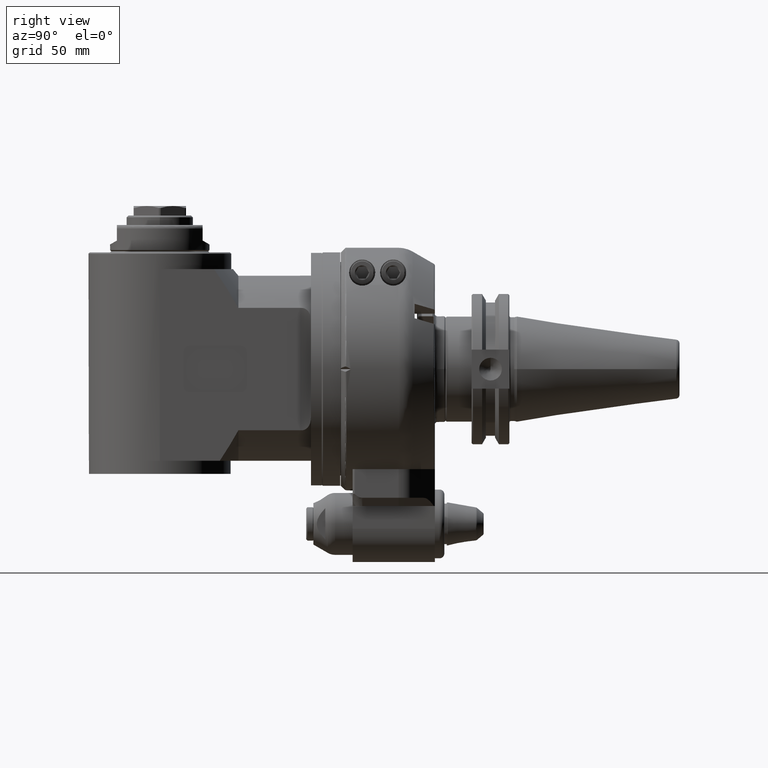
[diagram: clean part render]
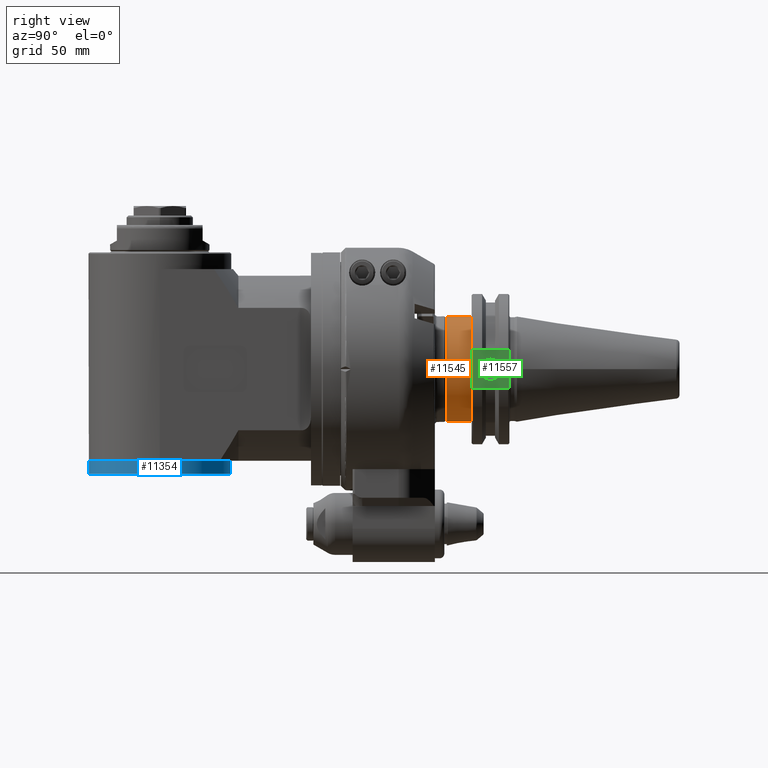
[diagram: same view with three faces highlighted in distinct colors, each labeled with its STEP entity id]
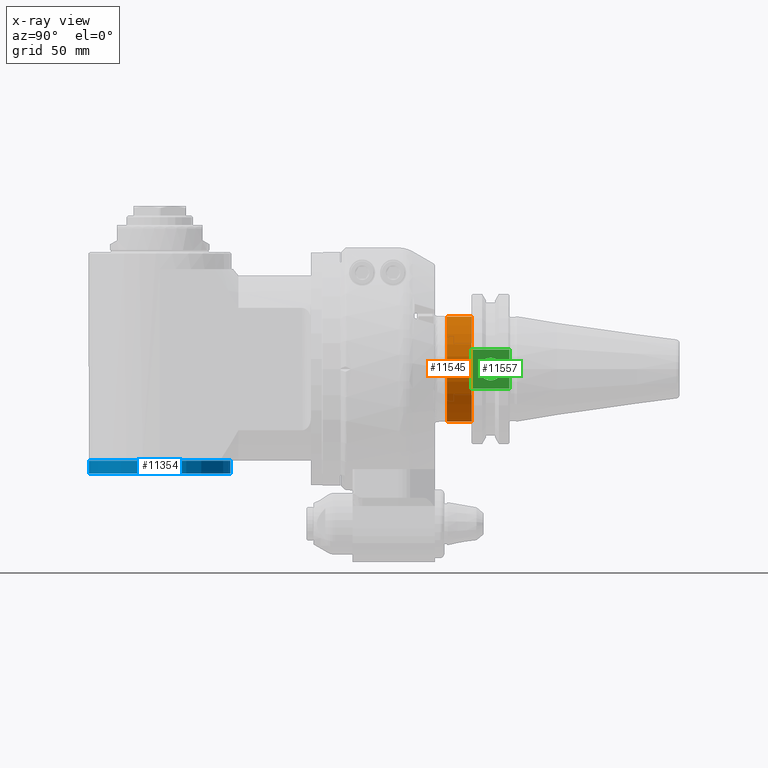
[diagram: x-ray of the same camera — body ghosted, the three highlighted faces saturated]
A machine part, right view with three faces highlighted in distinct colors.
The next image is the same camera in x-ray (body ghosted, the three faces saturated) — at least one of them is partly hidden behind the body in this view.
Their STEP definitions:

[orange] entity #11545 — the highlighted cylindrical surface (bore or boss wall) has radius 22.225 mm, axis along (0, -1, 0).
#1200=FACE_OUTER_BOUND('',#1965,.T.);
#1965=EDGE_LOOP('',(#8730,#8731,#8732,#8733,#8734));
#2801=LINE('',#18792,#3576);
#3576=VECTOR('',#14710,22.225);
#4333=CIRCLE('',#12578,22.225);
#4334=CIRCLE('',#12579,22.225);
#4335=CIRCLE('',#12581,22.225);
#5184=VERTEX_POINT('',#18785);
#5185=VERTEX_POINT('',#18786);
#5186=VERTEX_POINT('',#18791);
#6493=EDGE_CURVE('',#5184,#5185,#4333,.T.);
#6495=EDGE_CURVE('',#5185,#5184,#4334,.T.);
#6496=EDGE_CURVE('',#5184,#5186,#2801,.T.);
#6497=EDGE_CURVE('',#5186,#5186,#4335,.T.);
#8730=ORIENTED_EDGE('',*,*,#6493,.F.);
#8731=ORIENTED_EDGE('',*,*,#6496,.T.);
#8732=ORIENTED_EDGE('',*,*,#6497,.F.);
#8733=ORIENTED_EDGE('',*,*,#6496,.F.);
#8734=ORIENTED_EDGE('',*,*,#6495,.F.);
#11191=CYLINDRICAL_SURFACE('',#12580,22.225);
#11545=ADVANCED_FACE('',(#1200),#11191,.T.);
#12578=AXIS2_PLACEMENT_3D('',#18787,#14703,#14704);
#12579=AXIS2_PLACEMENT_3D('',#18789,#14706,#14707);
#12580=AXIS2_PLACEMENT_3D('',#18790,#14708,#14709);
#12581=AXIS2_PLACEMENT_3D('',#18793,#14711,#14712);
#14703=DIRECTION('center_axis',(0.,-1.,0.));
#14704=DIRECTION('ref_axis',(-1.,0.,0.));
#14706=DIRECTION('center_axis',(0.,-1.,0.));
#14707=DIRECTION('ref_axis',(-1.,0.,0.));
#14708=DIRECTION('center_axis',(0.,-1.,0.));
#14709=DIRECTION('ref_axis',(1.,0.,0.));
#14710=DIRECTION('',(0.,1.,0.));
#14711=DIRECTION('center_axis',(0.,1.,0.));
#14712=DIRECTION('ref_axis',(1.,0.,0.));
#18785=CARTESIAN_POINT('',(-22.225,44.5,0.));
#18786=CARTESIAN_POINT('',(22.225,44.5,-2.72177751110499E-15));
#18787=CARTESIAN_POINT('Origin',(0.,44.5,0.));
#18789=CARTESIAN_POINT('Origin',(0.,44.5,0.));
#18790=CARTESIAN_POINT('Origin',(0.,49.475,0.));
#18791=CARTESIAN_POINT('',(-22.225,54.95,-2.72177751110499E-15));
#18792=CARTESIAN_POINT('',(-22.225,49.475,-2.72177751110499E-15));
#18793=CARTESIAN_POINT('Origin',(0.,54.95,0.));

[blue] entity #11354 — the highlighted cylindrical surface (bore or boss wall) has radius 29.75 mm, axis along (0, -0, 1).
#1009=FACE_OUTER_BOUND('',#1745,.T.);
#1745=EDGE_LOOP('',(#7815,#7816,#7817,#7818));
#2604=LINE('',#17506,#3379);
#3379=VECTOR('',#13731,29.75);
#4138=CIRCLE('',#12159,29.75);
#4152=CIRCLE('',#12190,29.75);
#4877=VERTEX_POINT('',#17408);
#4889=VERTEX_POINT('',#17505);
#6019=EDGE_CURVE('',#4877,#4877,#4138,.T.);
#6043=EDGE_CURVE('',#4877,#4889,#2604,.T.);
#6044=EDGE_CURVE('',#4889,#4889,#4152,.T.);
#7815=ORIENTED_EDGE('',*,*,#6019,.F.);
#7816=ORIENTED_EDGE('',*,*,#6043,.T.);
#7817=ORIENTED_EDGE('',*,*,#6044,.F.);
#7818=ORIENTED_EDGE('',*,*,#6043,.F.);
#11138=CYLINDRICAL_SURFACE('',#12189,29.75);
#11354=ADVANCED_FACE('',(#1009),#11138,.T.);
#12159=AXIS2_PLACEMENT_3D('',#17409,#13663,#13664);
#12189=AXIS2_PLACEMENT_3D('',#17504,#13729,#13730);
#12190=AXIS2_PLACEMENT_3D('',#17507,#13732,#13733);
#13663=DIRECTION('center_axis',(1.,0.,0.));
#13664=DIRECTION('ref_axis',(0.,0.965925826289076,0.258819045102493));
#13729=DIRECTION('center_axis',(1.,0.,0.));
#13730=DIRECTION('ref_axis',(0.,-0.965925826289076,-0.258819045102493));
#13731=DIRECTION('',(-1.,0.,0.));
#13732=DIRECTION('center_axis',(-1.,0.,0.));
#13733=DIRECTION('ref_axis',(0.,-0.965925826289076,-0.258819045102493));
#17408=CARTESIAN_POINT('',(-49.33995821208,5.7362933321,7.69986659179918));
#17409=CARTESIAN_POINT('Origin',(-49.33995821208,-23.,0.));
#17504=CARTESIAN_POINT('Origin',(-53.83995821208,-23.,0.));
#17505=CARTESIAN_POINT('',(-54.83995821208,5.7362933321,7.69986659179918));
#17506=CARTESIAN_POINT('',(-53.83995821208,5.7362933321,7.69986659179918));
#17507=CARTESIAN_POINT('Origin',(-54.83995821208,-23.,0.));

[green] entity #11557 — the highlighted planar face has unit normal (-1, 0, 0).
#482=FACE_BOUND('',#1980,.T.);
#774=PLANE('',#12604);
#1212=FACE_OUTER_BOUND('',#1979,.T.);
#1979=EDGE_LOOP('',(#8805,#8806,#8807,#8808));
#1980=EDGE_LOOP('',(#8809));
#2805=LINE('',#18805,#3580);
#2822=LINE('',#18912,#3597);
#2826=LINE('',#18951,#3601);
#2827=LINE('',#18955,#3602);
#3580=VECTOR('',#14720,16.383);
#3597=VECTOR('',#14755,15.875);
#3601=VECTOR('',#14779,16.383);
#3602=VECTOR('',#14784,15.875);
#4347=CIRCLE('',#12605,4.7625);
#5191=VERTEX_POINT('',#18802);
#5192=VERTEX_POINT('',#18804);
#5213=VERTEX_POINT('',#18910);
#5218=VERTEX_POINT('',#18949);
#5220=VERTEX_POINT('',#18956);
#6502=EDGE_CURVE('',#5191,#5192,#2805,.T.);
#6529=EDGE_CURVE('',#5213,#5191,#2822,.T.);
#6540=EDGE_CURVE('',#5213,#5218,#2826,.T.);
#6542=EDGE_CURVE('',#5218,#5192,#2827,.T.);
#6543=EDGE_CURVE('',#5220,#5220,#4347,.T.);
#8805=ORIENTED_EDGE('',*,*,#6540,.T.);
#8806=ORIENTED_EDGE('',*,*,#6542,.T.);
#8807=ORIENTED_EDGE('',*,*,#6502,.F.);
#8808=ORIENTED_EDGE('',*,*,#6529,.F.);
#8809=ORIENTED_EDGE('',*,*,#6543,.T.);
#11557=ADVANCED_FACE('',(#1212,#482),#774,.F.);
#12604=AXIS2_PLACEMENT_3D('',#18954,#14782,#14783);
#12605=AXIS2_PLACEMENT_3D('',#18957,#14785,#14786);
#14720=DIRECTION('',(0.,0.,1.));
#14755=DIRECTION('',(0.,-1.,0.));
#14779=DIRECTION('',(0.,0.,1.));
#14782=DIRECTION('center_axis',(-1.,0.,0.));
#14783=DIRECTION('ref_axis',(0.,0.,-1.));
#14784=DIRECTION('',(0.,-1.,0.));
#14785=DIRECTION('center_axis',(-1.,0.,0.));
#14786=DIRECTION('ref_axis',(0.,0.,-1.));
#18802=CARTESIAN_POINT('',(25.019,54.95,-8.1915));
#18804=CARTESIAN_POINT('',(25.019,54.95,8.1915));
#18805=CARTESIAN_POINT('',(25.019,54.95,-8.1915));
#18910=CARTESIAN_POINT('',(25.019,70.825,-8.1915));
#18912=CARTESIAN_POINT('',(25.019,70.825,-8.1915));
#18949=CARTESIAN_POINT('',(25.019,70.825,8.1915));
#18951=CARTESIAN_POINT('',(25.019,70.825,-8.1915));
#18954=CARTESIAN_POINT('Origin',(25.019,20.9749976,8.1915));
#18955=CARTESIAN_POINT('',(25.019,70.825,8.1915));
#18956=CARTESIAN_POINT('',(25.019,62.8875,4.7625));
#18957=CARTESIAN_POINT('Origin',(25.019,62.8875,0.));